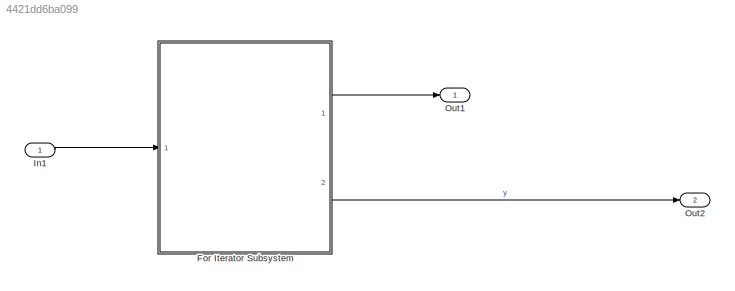
MODEL slx_4421dd6ba099
KIND model
CONFIG AbsTol = auto
CONFIG EnableMultiTasking = off
CONFIG FixedStep = 0.200000
CONFIG MaxStep = auto
CONFIG MinStep = auto
CONFIG RelTol = 1e-3
CONFIG SampleTimeConstraint = Unconstrained
CONFIG Solver = FixedStepDiscrete
CONFIG SolverName = FixedStepDiscrete
CONFIG StartTime = 0.0
CONFIG StopTime = 10.0
WORKSPACE source: MAT-file member
WORKSPACE A = [1.3034307905 0.581204540824 0.435903405618 1.73933419611]
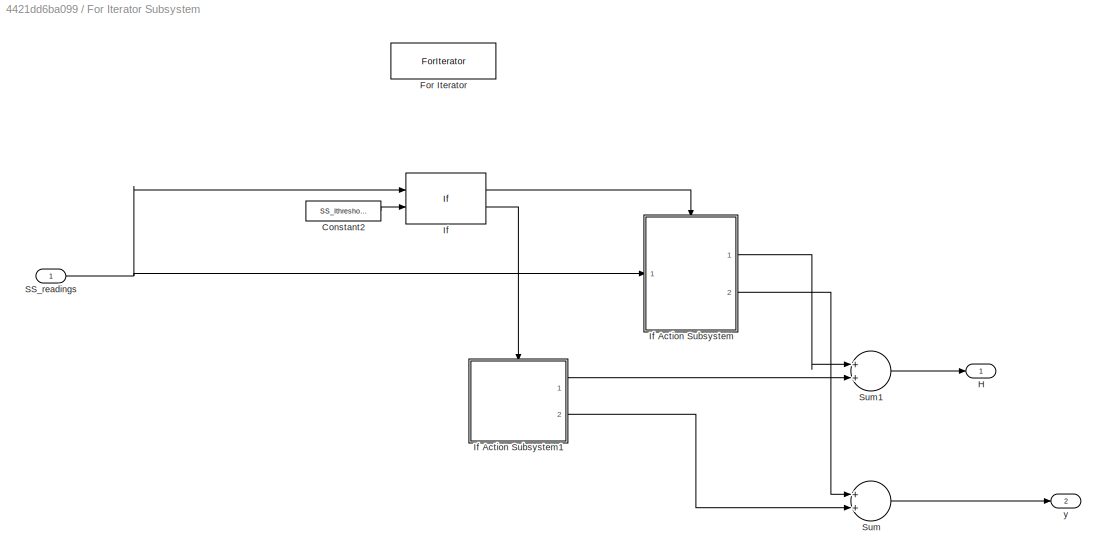
BLOCK [SubSystem] For Iterator Subsystem
  Ports = [1, 2]
  RequestExecContextInheritance = off
  TreatAsAtomicUnit = on
  Variant = off
BLOCK [Constant] For Iterator Subsystem/Constant2
  Value = SS_Ithreshold
BLOCK [ForIterator] For Iterator Subsystem/For Iterator
  IterationLimit = 3
  Ports = []
  ShowIterationPort = off
BLOCK [Outport] For Iterator Subsystem/H
  IconDisplay = Port number
BLOCK [If] For Iterator Subsystem/If
  IfExpression = u1 > u2
  NumInputs = 2
  Ports = [2, 2]
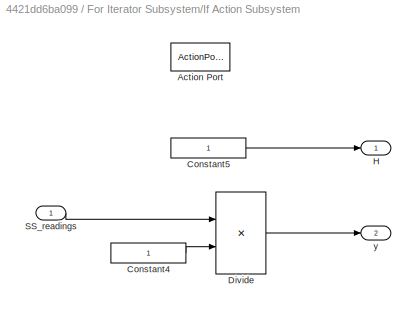
BLOCK [SubSystem] For Iterator Subsystem/If Action Subsystem
  Ports = [1, 2, 0, 0, 0, 0, 0, 1]
  RequestExecContextInheritance = off
  TreatAsAtomicUnit = on
  Variant = off
BLOCK [ActionPort] For Iterator Subsystem/If Action Subsystem/Action Port
  ActionType = then
  InitializeStates = reset
BLOCK [Constant] For Iterator Subsystem/If Action Subsystem/Constant4
BLOCK [Constant] For Iterator Subsystem/If Action Subsystem/Constant5
BLOCK [Product] For Iterator Subsystem/If Action Subsystem/Divide
  InputSameDT = off
  Inputs = */
  OutDataTypeStr = Inherit: Inherit via internal rule
  Ports = [2, 1]
  RndMeth = Floor
  SaturateOnIntegerOverflow = off
BLOCK [Outport] For Iterator Subsystem/If Action Subsystem/H
  IconDisplay = Port number
  InitialOutput = 0
  OutputWhenDisabled = reset
BLOCK [Inport] For Iterator Subsystem/If Action Subsystem/SS_readings
  IconDisplay = Port number
  OutDataTypeStr = double
  PortDimensions = 1
BLOCK [Outport] For Iterator Subsystem/If Action Subsystem/y
  IconDisplay = Port number
  InitialOutput = 0
  OutputWhenDisabled = reset
  Port = 2
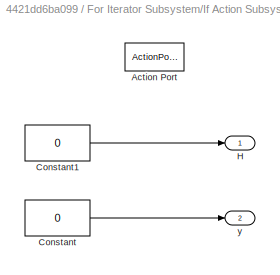
BLOCK [SubSystem] For Iterator Subsystem/If Action Subsystem1
  Ports = [0, 2, 0, 0, 0, 0, 0, 1]
  RequestExecContextInheritance = off
  TreatAsAtomicUnit = on
  Variant = off
BLOCK [ActionPort] For Iterator Subsystem/If Action Subsystem1/Action Port
  ActionType = else
  InitializeStates = reset
BLOCK [Constant] For Iterator Subsystem/If Action Subsystem1/Constant
  Value = 0
BLOCK [Constant] For Iterator Subsystem/If Action Subsystem1/Constant1
  Value = 0
BLOCK [Outport] For Iterator Subsystem/If Action Subsystem1/H
  IconDisplay = Port number
  InitialOutput = 0
  OutputWhenDisabled = reset
BLOCK [Outport] For Iterator Subsystem/If Action Subsystem1/y
  IconDisplay = Port number
  InitialOutput = 0
  OutputWhenDisabled = reset
  Port = 2
BLOCK [Inport] For Iterator Subsystem/SS_readings
  IconDisplay = Port number
  OutDataTypeStr = double
  PortDimensions = 1
BLOCK [Sum] For Iterator Subsystem/Sum
  InputSameDT = off
  OutDataTypeStr = Inherit: Inherit via internal rule
  Ports = [2, 1]
  SaturateOnIntegerOverflow = off
BLOCK [Sum] For Iterator Subsystem/Sum1
  InputSameDT = off
  OutDataTypeStr = Inherit: Inherit via internal rule
  Ports = [2, 1]
  SaturateOnIntegerOverflow = off
BLOCK [Outport] For Iterator Subsystem/y
  IconDisplay = Port number
  Port = 2
BLOCK [Inport] In1
  IconDisplay = Port number
  OutDataTypeStr = double
  PortDimensions = 1
BLOCK [Outport] Out1
  IconDisplay = Port number
BLOCK [Outport] Out2
  IconDisplay = Port number
  Port = 2
LINE For Iterator Subsystem/Constant2:1 -> For Iterator Subsystem/If:2
LINE For Iterator Subsystem/If Action Subsystem/Constant4:1 -> For Iterator Subsystem/If Action Subsystem/Divide:2
LINE For Iterator Subsystem/If Action Subsystem/Constant5:1 -> For Iterator Subsystem/If Action Subsystem/H:1
LINE For Iterator Subsystem/If Action Subsystem/Divide:1 -> For Iterator Subsystem/If Action Subsystem/y:1
LINE For Iterator Subsystem/If Action Subsystem/SS_readings:1 -> For Iterator Subsystem/If Action Subsystem/Divide:1
LINE For Iterator Subsystem/If Action Subsystem1/Constant1:1 -> For Iterator Subsystem/If Action Subsystem1/H:1
LINE For Iterator Subsystem/If Action Subsystem1/Constant:1 -> For Iterator Subsystem/If Action Subsystem1/y:1
LINE For Iterator Subsystem/If Action Subsystem1:1 -> For Iterator Subsystem/Sum1:2
LINE For Iterator Subsystem/If Action Subsystem1:2 -> For Iterator Subsystem/Sum:2
LINE For Iterator Subsystem/If Action Subsystem:1 -> For Iterator Subsystem/Sum1:1
LINE For Iterator Subsystem/If Action Subsystem:2 -> For Iterator Subsystem/Sum:1
LINE For Iterator Subsystem/If:1 -> For Iterator Subsystem/If Action Subsystem:ifaction
LINE For Iterator Subsystem/If:2 -> For Iterator Subsystem/If Action Subsystem1:ifaction
NET For Iterator Subsystem/SS_readings:1 -> For Iterator Subsystem/If Action Subsystem:1, For Iterator Subsystem/If:1
LINE For Iterator Subsystem/Sum1:1 -> For Iterator Subsystem/H:1
LINE For Iterator Subsystem/Sum:1 -> For Iterator Subsystem/y:1
LINE For Iterator Subsystem:1 -> Out1:1
LINE For Iterator Subsystem:2 -> Out2:1
LINE In1:1 -> For Iterator Subsystem:1
note: NET lines group one-source signal fan-out (src -> all destinations, sorted); 1:1 wires keep LINE
